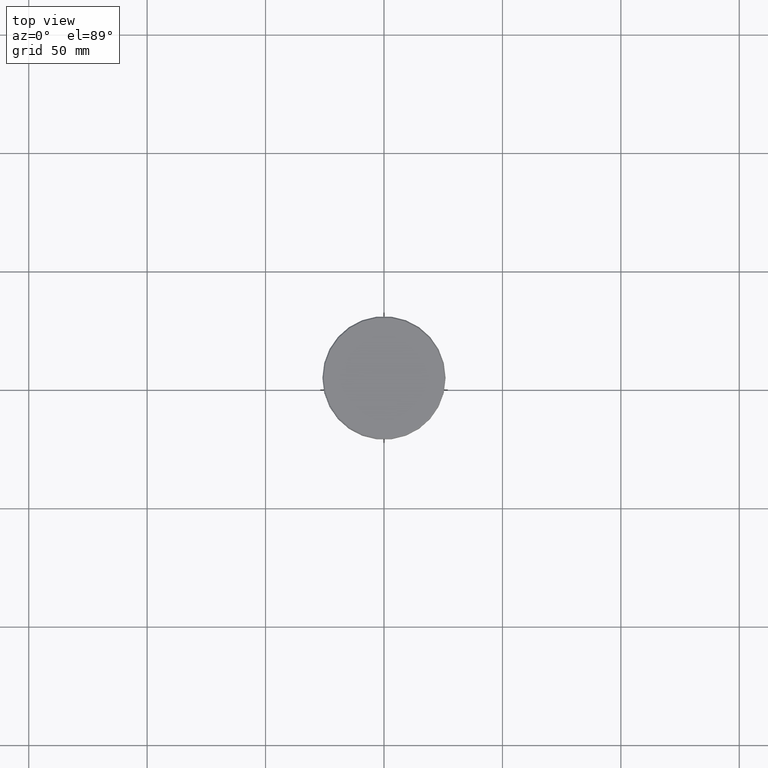
[diagram: clean part render]
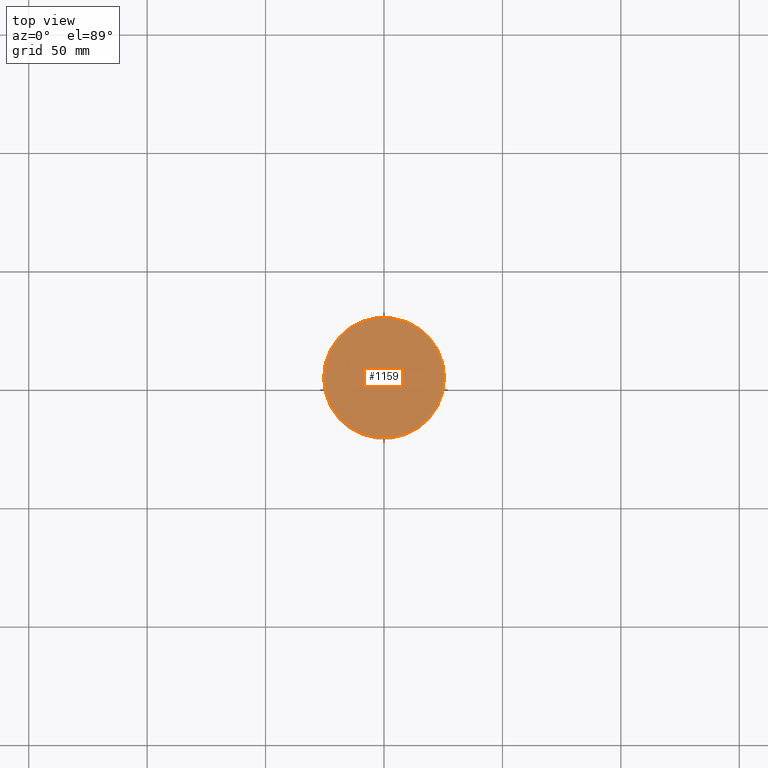
[diagram: same view with one face highlighted and labeled with its STEP entity id]
A machine part, top view. The second image highlights one B-rep face of the part: STEP entity #1159.
In plain terms, the highlighted planar face has unit normal (0, -0, 1).
Its self-contained STEP definition (entity closure, byte-faithful):
#31 = VERTEX_POINT ( 'NONE', #571 ) ;
#141 = PLANE ( 'NONE',  #892 ) ;
#225 = FACE_OUTER_BOUND ( 'NONE', #837, .T. ) ;
#313 = DIRECTION ( 'NONE',  ( -0.000000000000000000, -0.000000000000000000, 1.000000000000000000 ) ) ;
#341 = AXIS2_PLACEMENT_3D ( 'NONE', #847, #313, #678 ) ;
#413 = DIRECTION ( 'NONE',  ( 1.000000000000000000, 0.000000000000000000, 0.000000000000000000 ) ) ;
#468 = EDGE_CURVE ( 'NONE', #31, #1115, #557, .T. ) ;
#529 = CARTESIAN_POINT ( 'NONE',  ( 0.000000000000000000, 0.000000000000000000, 0.000000000000000000 ) ) ;
#557 = CIRCLE ( 'NONE', #341, 25.50000000000005329 ) ;
#560 = AXIS2_PLACEMENT_3D ( 'NONE', #529, #677, #413 ) ;
#571 = CARTESIAN_POINT ( 'NONE',  ( 25.50000000000005329, 3.153465507804437559E-15, 0.000000000000000000 ) ) ;
#591 = CARTESIAN_POINT ( 'NONE',  ( -25.50000000000005329, 0.000000000000000000, 0.000000000000000000 ) ) ;
#604 = CARTESIAN_POINT ( 'NONE',  ( 0.000000000000000000, 0.000000000000000000, 0.000000000000000000 ) ) ;
#677 = DIRECTION ( 'NONE',  ( -0.000000000000000000, -0.000000000000000000, 1.000000000000000000 ) ) ;
#678 = DIRECTION ( 'NONE',  ( 1.000000000000000000, 0.000000000000000000, 0.000000000000000000 ) ) ;
#758 = DIRECTION ( 'NONE',  ( 0.000000000000000000, -0.000000000000000000, 1.000000000000000000 ) ) ;
#837 = EDGE_LOOP ( 'NONE', ( #994, #863 ) ) ;
#847 = CARTESIAN_POINT ( 'NONE',  ( 0.000000000000000000, 0.000000000000000000, 0.000000000000000000 ) ) ;
#863 = ORIENTED_EDGE ( 'NONE', *, *, #468, .T. ) ;
#892 = AXIS2_PLACEMENT_3D ( 'NONE', #604, #758, #956 ) ;
#956 = DIRECTION ( 'NONE',  ( 1.000000000000000000, 0.000000000000000000, 0.000000000000000000 ) ) ;
#994 = ORIENTED_EDGE ( 'NONE', *, *, #1043, .T. ) ;
#1043 = EDGE_CURVE ( 'NONE', #1115, #31, #1091, .T. ) ;
#1091 = CIRCLE ( 'NONE', #560, 25.50000000000005329 ) ;
#1115 = VERTEX_POINT ( 'NONE', #591 ) ;
#1159 = ADVANCED_FACE ( 'NONE', ( #225 ), #141, .T. ) ;